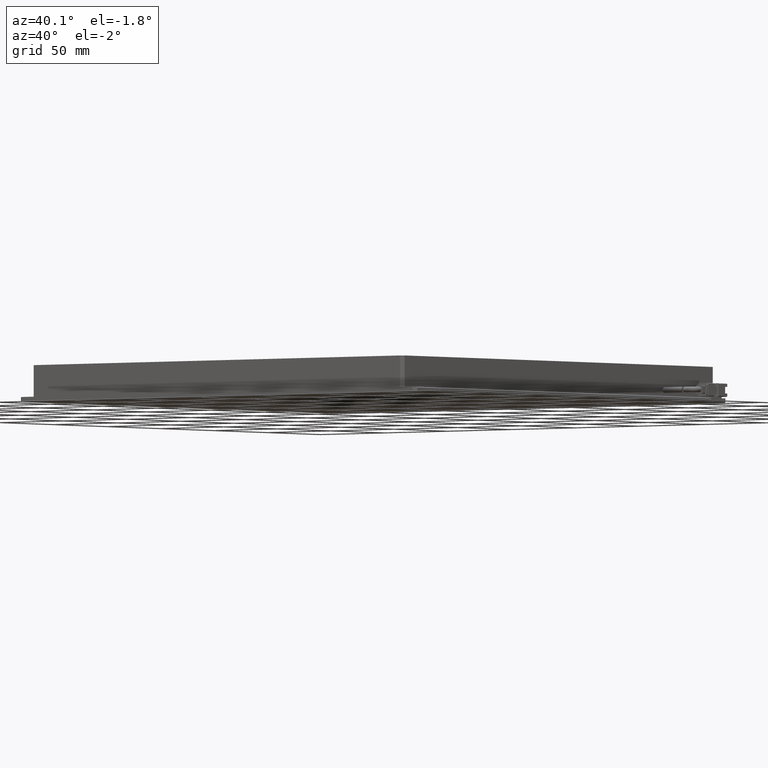
[diagram: clean part render]
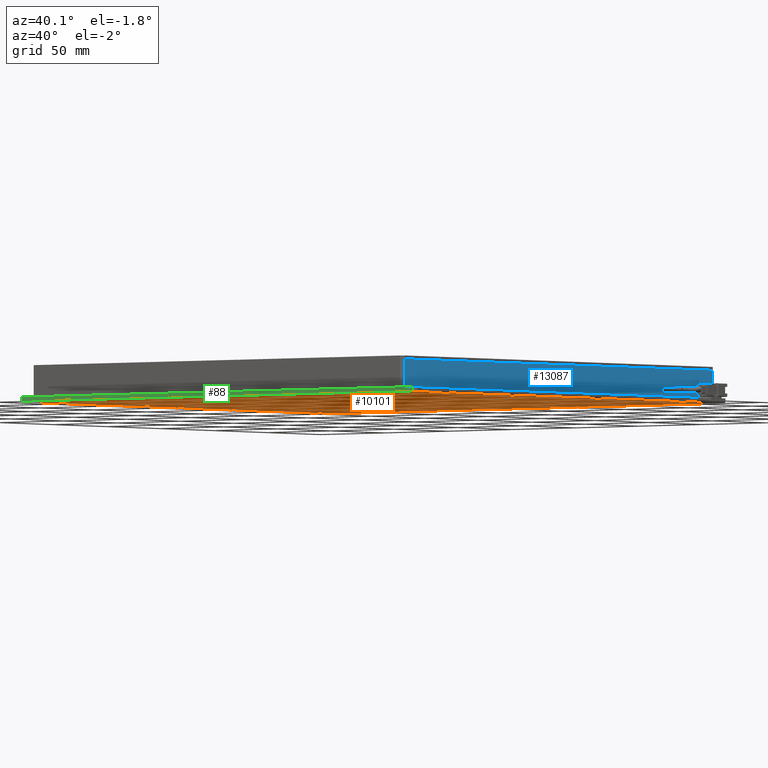
[diagram: same view with three faces highlighted in distinct colors, each labeled with its STEP entity id]
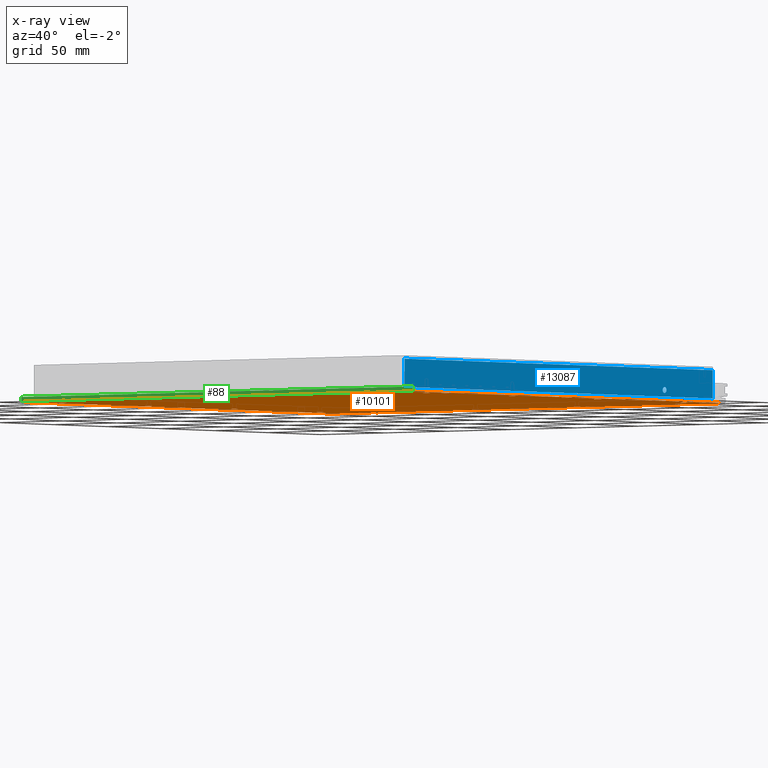
[diagram: x-ray of the same camera — body ghosted, the three highlighted faces saturated]
A machine part, auxiliary view with three faces highlighted in distinct colors.
The next image is the same camera in x-ray (body ghosted, the three faces saturated) — at least one of them is partly hidden behind the body in this view.
Their STEP definitions:

[orange] entity #10101 — the highlighted planar face has unit normal (0, 0, -1).
#23 = CARTESIAN_POINT ( 'NONE',  ( -110.0806771263419100, -106.7301954307733900, -11.50000000014188300 ) ) ;
#45 = EDGE_LOOP ( 'NONE', ( #4154, #4539 ) ) ;
#55 = DIRECTION ( 'NONE',  ( -0.0000000000000000000, -0.0000000000000000000, 1.000000000000000000 ) ) ;
#59 = PLANE ( 'NONE',  #22705 ) ;
#95 = CARTESIAN_POINT ( 'NONE',  ( 181.6693228736581000, 13.26980456922655100, -11.50000000002819600 ) ) ;
#107 = ORIENTED_EDGE ( 'NONE', *, *, #392, .T. ) ;
#170 = DIRECTION ( 'NONE',  ( -1.000000000000000000, 0.0000000000000000000, 0.0000000000000000000 ) ) ;
#172 = DIRECTION ( 'NONE',  ( 1.000000000000000000, 0.0000000000000000000, 0.0000000000000000000 ) ) ;
#263 = CARTESIAN_POINT ( 'NONE',  ( 188.4193228736581000, -130.5230886495869000, -11.50000000002819600 ) ) ;
#268 = EDGE_CURVE ( 'NONE', #20808, #8710, #6907, .T. ) ;
#310 = ORIENTED_EDGE ( 'NONE', *, *, #20920, .T. ) ;
#315 = EDGE_CURVE ( 'NONE', #22592, #26321, #6225, .T. ) ;
#392 = EDGE_CURVE ( 'NONE', #5650, #6043, #15008, .T. ) ;
#421 = EDGE_CURVE ( 'NONE', #7555, #11801, #1614, .T. ) ;
#506 = CIRCLE ( 'NONE', #17453, 2.199999999925692100 ) ;
#524 = CIRCLE ( 'NONE', #22736, 2.199999999810631200 ) ;
#527 = ORIENTED_EDGE ( 'NONE', *, *, #268, .T. ) ;
#541 = FACE_BOUND ( 'NONE', #15930, .T. ) ;
#576 = ORIENTED_EDGE ( 'NONE', *, *, #7539, .T. ) ;
#703 = CARTESIAN_POINT ( 'NONE',  ( -84.88067712644075900, -129.7301954307733600, -11.50000000002819600 ) ) ;
#755 = CIRCLE ( 'NONE', #6941, 2.199999999810631200 ) ;
#769 = EDGE_CURVE ( 'NONE', #15678, #6079, #2224, .T. ) ;
#884 = ORIENTED_EDGE ( 'NONE', *, *, #14242, .T. ) ;
#891 = ORIENTED_EDGE ( 'NONE', *, *, #18793, .T. ) ;
#1038 = DIRECTION ( 'NONE',  ( -1.000000000000000000, 0.0000000000000000000, 0.0000000000000000000 ) ) ;
#1136 = ORIENTED_EDGE ( 'NONE', *, *, #17325, .T. ) ;
#1206 = LINE ( 'NONE', #8019, #17572 ) ;
#1214 = ORIENTED_EDGE ( 'NONE', *, *, #1359, .T. ) ;
#1234 = EDGE_CURVE ( 'NONE', #21354, #7114, #24472, .T. ) ;
#1251 = FACE_BOUND ( 'NONE', #26277, .T. ) ;
#1293 = CIRCLE ( 'NONE', #17501, 2.249999999999988000 ) ;
#1295 = DIRECTION ( 'NONE',  ( -0.0000000000000000000, -0.0000000000000000000, 1.000000000000000000 ) ) ;
#1359 = EDGE_CURVE ( 'NONE', #14040, #20672, #5333, .T. ) ;
#1440 = VECTOR ( 'NONE', #10077, 1000.000000000000000 ) ;
#1514 = DIRECTION ( 'NONE',  ( -0.0000000000000000000, -0.0000000000000000000, 1.000000000000000000 ) ) ;
#1556 = DIRECTION ( 'NONE',  ( -1.000000000000000000, 0.0000000000000000000, 0.0000000000000000000 ) ) ;
#1607 = CARTESIAN_POINT ( 'NONE',  ( -7.080677126341916100, 156.2698045692266400, -11.49999999991450900 ) ) ;
#1611 = DIRECTION ( 'NONE',  ( -0.0000000000000000000, -0.0000000000000000000, 1.000000000000000000 ) ) ;
#1614 = LINE ( 'NONE', #22322, #23011 ) ;
#1615 = CIRCLE ( 'NONE', #4026, 2.199999999901142400 ) ;
#1740 = AXIS2_PLACEMENT_3D ( 'NONE', #9019, #1295, #1556 ) ;
#1769 = CARTESIAN_POINT ( 'NONE',  ( 178.1193228734687200, -106.7301954307733900, -11.49999999997135300 ) ) ;
#1774 = VERTEX_POINT ( 'NONE', #24126 ) ;
#1854 = AXIS2_PLACEMENT_3D ( 'NONE', #15363, #2575, #17516 ) ;
#1874 = DIRECTION ( 'NONE',  ( -0.0000000000000000000, -0.0000000000000000000, 1.000000000000000000 ) ) ;
#1901 = EDGE_CURVE ( 'NONE', #27020, #23419, #17704, .T. ) ;
#1911 = FACE_BOUND ( 'NONE', #23981, .T. ) ;
#2178 = DIRECTION ( 'NONE',  ( -1.000000000000000000, 0.0000000000000000000, 0.0000000000000000000 ) ) ;
#2194 = EDGE_CURVE ( 'NONE', #22463, #21168, #22407, .T. ) ;
#2208 = ORIENTED_EDGE ( 'NONE', *, *, #16748, .T. ) ;
#2224 = CIRCLE ( 'NONE', #6560, 2.199999999810631200 ) ;
#2236 = ORIENTED_EDGE ( 'NONE', *, *, #12126, .T. ) ;
#2269 = AXIS2_PLACEMENT_3D ( 'NONE', #12873, #55, #15041 ) ;
#2289 = EDGE_CURVE ( 'NONE', #26705, #2745, #7242, .T. ) ;
#2330 = CARTESIAN_POINT ( 'NONE',  ( -123.0806771263419100, 159.2698045692266400, -11.50000000002819600 ) ) ;
#2424 = EDGE_CURVE ( 'NONE', #25381, #15782, #1293, .T. ) ;
#2575 = DIRECTION ( 'NONE',  ( -0.0000000000000000000, -0.0000000000000000000, 1.000000000000000000 ) ) ;
#2577 = ORIENTED_EDGE ( 'NONE', *, *, #2424, .T. ) ;
#2591 = FACE_BOUND ( 'NONE', #21570, .T. ) ;
#2628 = CARTESIAN_POINT ( 'NONE',  ( 150.7193228736523700, 156.2698045692266400, -11.50000000002819600 ) ) ;
#2736 = CARTESIAN_POINT ( 'NONE',  ( -118.0806771263419100, 125.2698045692265900, -11.50000000002819600 ) ) ;
#2745 = VERTEX_POINT ( 'NONE', #16505 ) ;
#2758 = ORIENTED_EDGE ( 'NONE', *, *, #7370, .T. ) ;
#2779 = ORIENTED_EDGE ( 'NONE', *, *, #18394, .T. ) ;
#3220 = ORIENTED_EDGE ( 'NONE', *, *, #9382, .T. ) ;
#3252 = CARTESIAN_POINT ( 'NONE',  ( 183.9193228736580700, 13.26980456922655100, -11.50000000002819600 ) ) ;
#3298 = AXIS2_PLACEMENT_3D ( 'NONE', #3644, #18646, #5747 ) ;
#3314 = AXIS2_PLACEMENT_3D ( 'NONE', #18771, #5863, #20897 ) ;
#3333 = AXIS2_PLACEMENT_3D ( 'NONE', #21410, #13000, #22148 ) ;
#3383 = EDGE_CURVE ( 'NONE', #14406, #20335, #5531, .T. ) ;
#3434 = CARTESIAN_POINT ( 'NONE',  ( -120.3306771263419000, -98.73019543077346300, -11.50000000002819600 ) ) ;
#3494 = CIRCLE ( 'NONE', #5571, 2.199999999810631200 ) ;
#3644 = CARTESIAN_POINT ( 'NONE',  ( 72.91932287365810300, -129.7301954307733600, -11.50000000002819600 ) ) ;
#3694 = CARTESIAN_POINT ( 'NONE',  ( -107.8806771264162200, -26.73019543077340300, -11.50000000014188300 ) ) ;
#3748 = DIRECTION ( 'NONE',  ( -0.7071067811865510100, 0.7071067811865441300, 0.0000000000000000000 ) ) ;
#3773 = CARTESIAN_POINT ( 'NONE',  ( -120.8735703451553900, -132.2301954307733600, -11.50000000002819600 ) ) ;
#3790 = ORIENTED_EDGE ( 'NONE', *, *, #27236, .T. ) ;
#3910 = CARTESIAN_POINT ( 'NONE',  ( -107.8806771264162200, 133.2698045692266100, -11.50000000014188300 ) ) ;
#3983 = CARTESIAN_POINT ( 'NONE',  ( 183.9193228736580700, 125.2698045692265400, -11.50000000002819600 ) ) ;
#4026 = AXIS2_PLACEMENT_3D ( 'NONE', #24055, #11170, #26193 ) ;
#4061 = CARTESIAN_POINT ( 'NONE',  ( -89.28067712624304900, 156.2698045692266400, -11.50000000002819600 ) ) ;
#4085 = ORIENTED_EDGE ( 'NONE', *, *, #25024, .T. ) ;
#4125 = ORIENTED_EDGE ( 'NONE', *, *, #315, .T. ) ;
#4154 = ORIENTED_EDGE ( 'NONE', *, *, #11944, .T. ) ;
#4214 = CARTESIAN_POINT ( 'NONE',  ( 173.7193228738474600, -26.73019543077340300, -11.49999999997135300 ) ) ;
#4427 = DIRECTION ( 'NONE',  ( -1.000000000000000000, 0.0000000000000000000, -0.0000000000000000000 ) ) ;
#4539 = ORIENTED_EDGE ( 'NONE', *, *, #13400, .T. ) ;
#4579 = EDGE_CURVE ( 'NONE', #11504, #24335, #8739, .T. ) ;
#4619 = CARTESIAN_POINT ( 'NONE',  ( 178.1193228734687200, 133.2698045692266100, -11.49999999997135300 ) ) ;
#4662 = ORIENTED_EDGE ( 'NONE', *, *, #18635, .T. ) ;
#4789 = ORIENTED_EDGE ( 'NONE', *, *, #21966, .T. ) ;
#4805 = ORIENTED_EDGE ( 'NONE', *, *, #4579, .T. ) ;
#4833 = DIRECTION ( 'NONE',  ( 1.000000000000000000, 0.0000000000000000000, 0.0000000000000000000 ) ) ;
#4852 = ORIENTED_EDGE ( 'NONE', *, *, #26873, .T. ) ;
#4901 = CARTESIAN_POINT ( 'NONE',  ( -123.0806771263419100, -132.2301954307733600, -11.50000000002819600 ) ) ;
#4902 = EDGE_CURVE ( 'NONE', #6079, #15678, #755, .T. ) ;
#5213 = ORIENTED_EDGE ( 'NONE', *, *, #7281, .T. ) ;
#5230 = EDGE_CURVE ( 'NONE', #17469, #26575, #22813, .T. ) ;
#5333 = CIRCLE ( 'NONE', #9254, 2.199999999925692100 ) ;
#5364 = DIRECTION ( 'NONE',  ( 1.000000000000000000, 0.0000000000000000000, 0.0000000000000000000 ) ) ;
#5386 = CARTESIAN_POINT ( 'NONE',  ( 152.9193228736580500, -129.7301954307733600, -11.50000000002819600 ) ) ;
#5432 = VERTEX_POINT ( 'NONE', #15863 ) ;
#5497 = ORIENTED_EDGE ( 'NONE', *, *, #7578, .T. ) ;
#5524 = DIRECTION ( 'NONE',  ( -0.0000000000000000000, -0.0000000000000000000, 1.000000000000000000 ) ) ;
#5531 = LINE ( 'NONE', #3773, #10547 ) ;
#5541 = ORIENTED_EDGE ( 'NONE', *, *, #25412, .T. ) ;
#5557 = CARTESIAN_POINT ( 'NONE',  ( 152.9193228736580500, 156.2698045692266400, -11.50000000002819600 ) ) ;
#5571 = AXIS2_PLACEMENT_3D ( 'NONE', #6301, #21319, #8419 ) ;
#5650 = VERTEX_POINT ( 'NONE', #10267 ) ;
#5704 = CARTESIAN_POINT ( 'NONE',  ( -89.28067712624304900, -129.7301954307733600, -11.50000000002819600 ) ) ;
#5747 = DIRECTION ( 'NONE',  ( -1.000000000000000000, 0.0000000000000000000, 0.0000000000000000000 ) ) ;
#5811 = VERTEX_POINT ( 'NONE', #16491 ) ;
#5848 = ORIENTED_EDGE ( 'NONE', *, *, #1901, .T. ) ;
#5863 = DIRECTION ( 'NONE',  ( -0.0000000000000000000, -0.0000000000000000000, 1.000000000000000000 ) ) ;
#5906 = AXIS2_PLACEMENT_3D ( 'NONE', #3252, #18224, #5364 ) ;
#5982 = CARTESIAN_POINT ( 'NONE',  ( -4.880677126424870900, -129.7301954307733600, -11.49999999991450900 ) ) ;
#6043 = VERTEX_POINT ( 'NONE', #5982 ) ;
#6045 = CARTESIAN_POINT ( 'NONE',  ( -84.88067712644075900, 156.2698045692266400, -11.50000000002819600 ) ) ;
#6060 = VERTEX_POINT ( 'NONE', #5704 ) ;
#6079 = VERTEX_POINT ( 'NONE', #18314 ) ;
#6080 = DIRECTION ( 'NONE',  ( 1.000000000000000000, 0.0000000000000000000, 0.0000000000000000000 ) ) ;
#6163 = FACE_BOUND ( 'NONE', #45, .T. ) ;
#6225 = CIRCLE ( 'NONE', #24538, 2.249999999999988000 ) ;
#6255 = CIRCLE ( 'NONE', #16397, 2.249999999999988000 ) ;
#6282 = ORIENTED_EDGE ( 'NONE', *, *, #26034, .T. ) ;
#6301 = CARTESIAN_POINT ( 'NONE',  ( 175.9193228736580700, -26.73019543077340300, -11.49999999997135300 ) ) ;
#6387 = VERTEX_POINT ( 'NONE', #23809 ) ;
#6560 = AXIS2_PLACEMENT_3D ( 'NONE', #8777, #9139, #26800 ) ;
#6596 = DIRECTION ( 'NONE',  ( -0.0000000000000000000, -0.0000000000000000000, 1.000000000000000000 ) ) ;
#6637 = ORIENTED_EDGE ( 'NONE', *, *, #3383, .T. ) ;
#6738 = ORIENTED_EDGE ( 'NONE', *, *, #10442, .T. ) ;
#6823 = AXIS2_PLACEMENT_3D ( 'NONE', #5386, #20394, #7518 ) ;
#6850 = FACE_BOUND ( 'NONE', #25954, .T. ) ;
#6864 = CARTESIAN_POINT ( 'NONE',  ( -120.3306771263419000, 125.2698045692265900, -11.50000000002819600 ) ) ;
#6907 = CIRCLE ( 'NONE', #17369, 2.199999999925692100 ) ;
#6941 = AXIS2_PLACEMENT_3D ( 'NONE', #20726, #20414, #20232 ) ;
#7000 = CARTESIAN_POINT ( 'NONE',  ( 70.71932287366827600, 156.2698045692266400, -11.50000000002819600 ) ) ;
#7060 = ORIENTED_EDGE ( 'NONE', *, *, #4902, .T. ) ;
#7095 = CARTESIAN_POINT ( 'NONE',  ( 72.91932287365810300, 156.2698045692266400, -11.50000000002819600 ) ) ;
#7114 = VERTEX_POINT ( 'NONE', #2628 ) ;
#7219 = CARTESIAN_POINT ( 'NONE',  ( 70.71932287366827600, -129.7301954307733600, -11.50000000002819600 ) ) ;
#7242 = CIRCLE ( 'NONE', #1740, 2.200000000005697400 ) ;
#7281 = EDGE_CURVE ( 'NONE', #12001, #1774, #13943, .T. ) ;
#7287 = CIRCLE ( 'NONE', #21637, 2.199999999901142400 ) ;
#7370 = EDGE_CURVE ( 'NONE', #8710, #20808, #506, .T. ) ;
#7424 = CIRCLE ( 'NONE', #26347, 2.249999999999974200 ) ;
#7518 = DIRECTION ( 'NONE',  ( -1.000000000000000000, 0.0000000000000000000, 0.0000000000000000000 ) ) ;
#7519 = FACE_BOUND ( 'NONE', #23566, .T. ) ;
#7539 = EDGE_CURVE ( 'NONE', #6387, #8430, #22257, .T. ) ;
#7555 = VERTEX_POINT ( 'NONE', #14667 ) ;
#7578 = EDGE_CURVE ( 'NONE', #24335, #11504, #15234, .T. ) ;
#7636 = DIRECTION ( 'NONE',  ( -0.0000000000000000000, -0.0000000000000000000, 1.000000000000000000 ) ) ;
#7685 = CARTESIAN_POINT ( 'NONE',  ( -118.0806771263419100, -98.73019543077346300, -11.50000000002819600 ) ) ;
#7689 = CARTESIAN_POINT ( 'NONE',  ( 75.11932287364791700, -129.7301954307733600, -11.50000000002819600 ) ) ;
#7698 = ORIENTED_EDGE ( 'NONE', *, *, #13949, .T. ) ;
#7701 = DIRECTION ( 'NONE',  ( -1.000000000000000000, 0.0000000000000000000, 0.0000000000000000000 ) ) ;
#7718 = CARTESIAN_POINT ( 'NONE',  ( 188.4193228736581000, -130.5230886495869000, -11.50000000002819600 ) ) ;
#8019 = CARTESIAN_POINT ( 'NONE',  ( -122.5806771263419300, 159.2698045692266400, -11.50000000002819600 ) ) ;
#8098 = EDGE_CURVE ( 'NONE', #22779, #18355, #13884, .T. ) ;
#8125 = CARTESIAN_POINT ( 'NONE',  ( -110.0806771263419100, 53.26980456922658600, -11.50000000014188300 ) ) ;
#8141 = AXIS2_PLACEMENT_3D ( 'NONE', #21313, #21393, #21488 ) ;
#8173 = FACE_BOUND ( 'NONE', #21202, .T. ) ;
#8209 = CARTESIAN_POINT ( 'NONE',  ( -7.080677126341916100, 156.2698045692266400, -11.49999999991450900 ) ) ;
#8233 = CIRCLE ( 'NONE', #17059, 2.249999999999974200 ) ;
#8247 = ORIENTED_EDGE ( 'NONE', *, *, #2289, .T. ) ;
#8255 = EDGE_CURVE ( 'NONE', #5432, #10481, #18544, .T. ) ;
#8272 = ORIENTED_EDGE ( 'NONE', *, *, #21885, .T. ) ;
#8419 = DIRECTION ( 'NONE',  ( -1.000000000000000000, 0.0000000000000000000, 0.0000000000000000000 ) ) ;
#8430 = VERTEX_POINT ( 'NONE', #24162 ) ;
#8431 = CARTESIAN_POINT ( 'NONE',  ( 183.9193228736580700, 125.2698045692265400, -11.50000000002819600 ) ) ;
#8538 = CARTESIAN_POINT ( 'NONE',  ( -120.8735703451554300, 158.7698045692266400, -11.50000000002819600 ) ) ;
#8602 = CIRCLE ( 'NONE', #16916, 2.200000000005697400 ) ;
#8626 = ORIENTED_EDGE ( 'NONE', *, *, #16566, .T. ) ;
#8704 = ORIENTED_EDGE ( 'NONE', *, *, #769, .T. ) ;
#8710 = VERTEX_POINT ( 'NONE', #3694 ) ;
#8739 = CIRCLE ( 'NONE', #18663, 2.199999999917046100 ) ;
#8777 = CARTESIAN_POINT ( 'NONE',  ( 175.9193228736580700, 53.26980456922658600, -11.49999999997135300 ) ) ;
#8793 = CARTESIAN_POINT ( 'NONE',  ( -87.08067712634191100, 156.2698045692266400, -11.50000000002819600 ) ) ;
#8818 = CARTESIAN_POINT ( 'NONE',  ( 183.9193228736580700, -98.73019543077344900, -11.50000000002819600 ) ) ;
#8832 = DIRECTION ( 'NONE',  ( -0.0000000000000000000, -0.0000000000000000000, 1.000000000000000000 ) ) ;
#8845 = FACE_BOUND ( 'NONE', #14560, .T. ) ;
#9019 = CARTESIAN_POINT ( 'NONE',  ( 152.9193228736580500, -129.7301954307733600, -11.50000000002819600 ) ) ;
#9108 = DIRECTION ( 'NONE',  ( -1.000000000000000000, 0.0000000000000000000, 0.0000000000000000000 ) ) ;
#9139 = DIRECTION ( 'NONE',  ( -0.0000000000000000000, -0.0000000000000000000, 1.000000000000000000 ) ) ;
#9185 = CARTESIAN_POINT ( 'NONE',  ( -110.0806771263419100, 133.2698045692266100, -11.50000000014188300 ) ) ;
#9240 = DIRECTION ( 'NONE',  ( -1.000000000000000000, 0.0000000000000000000, 0.0000000000000000000 ) ) ;
#9254 = AXIS2_PLACEMENT_3D ( 'NONE', #9185, #8832, #9108 ) ;
#9271 = AXIS2_PLACEMENT_3D ( 'NONE', #13879, #15010, #14642 ) ;
#9382 = EDGE_CURVE ( 'NONE', #15782, #25381, #27472, .T. ) ;
#9397 = VERTEX_POINT ( 'NONE', #8538 ) ;
#9480 = VERTEX_POINT ( 'NONE', #6864 ) ;
#9481 = CIRCLE ( 'NONE', #20779, 2.199999999925692100 ) ;
#9595 = VERTEX_POINT ( 'NONE', #15603 ) ;
#9677 = AXIS2_PLACEMENT_3D ( 'NONE', #8209, #23243, #10383 ) ;
#9696 = VERTEX_POINT ( 'NONE', #22545 ) ;
#9826 = DIRECTION ( 'NONE',  ( 1.000000000000000000, 0.0000000000000000000, 0.0000000000000000000 ) ) ;
#9871 = CARTESIAN_POINT ( 'NONE',  ( -112.2806771262676100, 133.2698045692266100, -11.50000000014188300 ) ) ;
#10062 = CARTESIAN_POINT ( 'NONE',  ( 173.7193228738474600, 53.26980456922658600, -11.49999999997135300 ) ) ;
#10077 = DIRECTION ( 'NONE',  ( 1.000000000000000000, -0.0000000000000000000, 0.0000000000000000000 ) ) ;
#10101 = ADVANCED_FACE ( 'NONE', ( #20981, #8845, #25328, #19656, #13976, #8173, #2591, #24671, #18988, #13277, #7519, #1911, #23996, #18305, #12595, #6850, #1251, #23303, #17622, #11910, #6163, #541, #22631 ), #59, .T. ) ;
#10168 = DIRECTION ( 'NONE',  ( 0.0000000000000000000, 1.000000000000000000, 0.0000000000000000000 ) ) ;
#10267 = CARTESIAN_POINT ( 'NONE',  ( -9.280677126258963100, -129.7301954307733600, -11.49999999991450900 ) ) ;
#10285 = EDGE_CURVE ( 'NONE', #26575, #17469, #25301, .T. ) ;
#10297 = DIRECTION ( 'NONE',  ( -1.000000000000000000, 0.0000000000000000000, 0.0000000000000000000 ) ) ;
#10383 = DIRECTION ( 'NONE',  ( -1.000000000000000000, 0.0000000000000000000, 0.0000000000000000000 ) ) ;
#10442 = EDGE_CURVE ( 'NONE', #15446, #6060, #7287, .T. ) ;
#10481 = VERTEX_POINT ( 'NONE', #18675 ) ;
#10547 = VECTOR ( 'NONE', #3748, 999.9999999999998900 ) ;
#10595 = DIRECTION ( 'NONE',  ( -0.0000000000000000000, -0.0000000000000000000, 1.000000000000000000 ) ) ;
#10624 = DIRECTION ( 'NONE',  ( 1.000000000000000000, 0.0000000000000000000, 0.0000000000000000000 ) ) ;
#10655 = CARTESIAN_POINT ( 'NONE',  ( 175.9193228736580700, 133.2698045692266100, -11.49999999997135300 ) ) ;
#10782 = CARTESIAN_POINT ( 'NONE',  ( -118.0806771263419100, -98.73019543077346300, -11.50000000002819600 ) ) ;
#10881 = AXIS2_PLACEMENT_3D ( 'NONE', #11794, #26826, #14006 ) ;
#10914 = CARTESIAN_POINT ( 'NONE',  ( -120.3306771263419000, 13.26980456922663400, -11.50000000002819600 ) ) ;
#10923 = CARTESIAN_POINT ( 'NONE',  ( -4.880677126424870900, 156.2698045692266400, -11.49999999991450900 ) ) ;
#10987 = DIRECTION ( 'NONE',  ( -1.000000000000000000, 0.0000000000000000000, 0.0000000000000000000 ) ) ;
#11011 = DIRECTION ( 'NONE',  ( 1.000000000000000000, 0.0000000000000000000, 0.0000000000000000000 ) ) ;
#11121 = AXIS2_PLACEMENT_3D ( 'NONE', #8125, #23158, #10297 ) ;
#11170 = DIRECTION ( 'NONE',  ( -0.0000000000000000000, -0.0000000000000000000, 1.000000000000000000 ) ) ;
#11247 = AXIS2_PLACEMENT_3D ( 'NONE', #23468, #10595, #25605 ) ;
#11452 = ORIENTED_EDGE ( 'NONE', *, *, #2194, .T. ) ;
#11504 = VERTEX_POINT ( 'NONE', #10923 ) ;
#11586 = DIRECTION ( 'NONE',  ( -1.000000000000000000, 0.0000000000000000000, 0.0000000000000000000 ) ) ;
#11614 = CIRCLE ( 'NONE', #16731, 2.249999999999974200 ) ;
#11668 = CIRCLE ( 'NONE', #10881, 2.199999999925692100 ) ;
#11689 = DIRECTION ( 'NONE',  ( -0.0000000000000000000, -0.0000000000000000000, 1.000000000000000000 ) ) ;
#11784 = CARTESIAN_POINT ( 'NONE',  ( 152.9193228736580500, 156.2698045692266400, -11.50000000002819600 ) ) ;
#11794 = CARTESIAN_POINT ( 'NONE',  ( -110.0806771263419100, -106.7301954307733900, -11.50000000014188300 ) ) ;
#11801 = VERTEX_POINT ( 'NONE', #7718 ) ;
#11910 = FACE_BOUND ( 'NONE', #27330, .T. ) ;
#11923 = LINE ( 'NONE', #13746, #22644 ) ;
#11944 = EDGE_CURVE ( 'NONE', #17068, #24406, #7424, .T. ) ;
#11978 = CARTESIAN_POINT ( 'NONE',  ( 75.11932287364791700, 156.2698045692266400, -11.50000000002819600 ) ) ;
#12001 = VERTEX_POINT ( 'NONE', #95 ) ;
#12019 = CARTESIAN_POINT ( 'NONE',  ( -110.0806771263419100, 133.2698045692266100, -11.50000000014188300 ) ) ;
#12088 = CARTESIAN_POINT ( 'NONE',  ( -87.08067712634191100, -129.7301954307733600, -11.50000000002819600 ) ) ;
#12126 = EDGE_CURVE ( 'NONE', #9480, #14908, #26960, .T. ) ;
#12154 = VERTEX_POINT ( 'NONE', #26191 ) ;
#12229 = CIRCLE ( 'NONE', #2269, 2.199999999810631200 ) ;
#12347 = ORIENTED_EDGE ( 'NONE', *, *, #21557, .T. ) ;
#12473 = LINE ( 'NONE', #263, #23862 ) ;
#12478 = EDGE_CURVE ( 'NONE', #21756, #19791, #17869, .T. ) ;
#12595 = FACE_BOUND ( 'NONE', #25616, .T. ) ;
#12810 = ORIENTED_EDGE ( 'NONE', *, *, #12478, .T. ) ;
#12811 = AXIS2_PLACEMENT_3D ( 'NONE', #20504, #7636, #22653 ) ;
#12821 = ORIENTED_EDGE ( 'NONE', *, *, #10285, .T. ) ;
#12855 = DIRECTION ( 'NONE',  ( -1.000000000000000000, 0.0000000000000000000, 0.0000000000000000000 ) ) ;
#12873 = CARTESIAN_POINT ( 'NONE',  ( 175.9193228736580700, -106.7301954307733900, -11.49999999997135300 ) ) ;
#12995 = AXIS2_PLACEMENT_3D ( 'NONE', #7685, #22712, #9826 ) ;
#13000 = DIRECTION ( 'NONE',  ( -0.0000000000000000000, -0.0000000000000000000, 1.000000000000000000 ) ) ;
#13008 = DIRECTION ( 'NONE',  ( -0.0000000000000000000, -0.0000000000000000000, 1.000000000000000000 ) ) ;
#13012 = DIRECTION ( 'NONE',  ( -0.0000000000000000000, -0.0000000000000000000, 1.000000000000000000 ) ) ;
#13277 = FACE_BOUND ( 'NONE', #23284, .T. ) ;
#13288 = EDGE_LOOP ( 'NONE', ( #23774, #12821 ) ) ;
#13347 = CARTESIAN_POINT ( 'NONE',  ( -115.8306771263419100, 125.2698045692265900, -11.50000000002819600 ) ) ;
#13400 = EDGE_CURVE ( 'NONE', #24406, #17068, #11614, .T. ) ;
#13576 = AXIS2_PLACEMENT_3D ( 'NONE', #7095, #22123, #9240 ) ;
#13746 = CARTESIAN_POINT ( 'NONE',  ( -122.5806771263419400, 157.0626977880401100, -11.50000000002819600 ) ) ;
#13836 = ORIENTED_EDGE ( 'NONE', *, *, #22147, .T. ) ;
#13853 = ORIENTED_EDGE ( 'NONE', *, *, #15827, .T. ) ;
#13879 = CARTESIAN_POINT ( 'NONE',  ( 72.91932287365810300, 156.2698045692266400, -11.50000000002819600 ) ) ;
#13884 = CIRCLE ( 'NONE', #3314, 2.199999999810631200 ) ;
#13929 = CARTESIAN_POINT ( 'NONE',  ( -118.0806771263419100, 13.26980456922663400, -11.50000000002819600 ) ) ;
#13943 = CIRCLE ( 'NONE', #5906, 2.249999999999974200 ) ;
#13949 = EDGE_CURVE ( 'NONE', #23394, #5811, #524, .T. ) ;
#13976 = FACE_BOUND ( 'NONE', #20656, .T. ) ;
#14006 = DIRECTION ( 'NONE',  ( -1.000000000000000000, 0.0000000000000000000, 0.0000000000000000000 ) ) ;
#14040 = VERTEX_POINT ( 'NONE', #3910 ) ;
#14197 = DIRECTION ( 'NONE',  ( -1.000000000000000000, 0.0000000000000000000, 0.0000000000000000000 ) ) ;
#14242 = EDGE_CURVE ( 'NONE', #8430, #6387, #9481, .T. ) ;
#14270 = DIRECTION ( 'NONE',  ( -1.000000000000000000, 0.0000000000000000000, 0.0000000000000000000 ) ) ;
#14406 = VERTEX_POINT ( 'NONE', #22165 ) ;
#14433 = CARTESIAN_POINT ( 'NONE',  ( 175.9193228736580700, -26.73019543077340300, -11.49999999997135300 ) ) ;
#14560 = EDGE_LOOP ( 'NONE', ( #8626, #24454 ) ) ;
#14642 = DIRECTION ( 'NONE',  ( -1.000000000000000000, 0.0000000000000000000, 0.0000000000000000000 ) ) ;
#14667 = CARTESIAN_POINT ( 'NONE',  ( 188.4193228736581000, 157.0626977880402800, -11.50000000002819100 ) ) ;
#14699 = CARTESIAN_POINT ( 'NONE',  ( -118.0806771263419100, 125.2698045692265900, -11.50000000002819600 ) ) ;
#14734 = VERTEX_POINT ( 'NONE', #4061 ) ;
#14776 = CARTESIAN_POINT ( 'NONE',  ( 155.1193228736637500, 156.2698045692266400, -11.50000000002819600 ) ) ;
#14908 = VERTEX_POINT ( 'NONE', #13347 ) ;
#14998 = DIRECTION ( 'NONE',  ( -0.0000000000000000000, -0.0000000000000000000, 1.000000000000000000 ) ) ;
#15008 = CIRCLE ( 'NONE', #8141, 2.199999999917046100 ) ;
#15010 = DIRECTION ( 'NONE',  ( -0.0000000000000000000, -0.0000000000000000000, 1.000000000000000000 ) ) ;
#15041 = DIRECTION ( 'NONE',  ( -1.000000000000000000, 0.0000000000000000000, 0.0000000000000000000 ) ) ;
#15119 = EDGE_CURVE ( 'NONE', #9397, #9696, #23509, .T. ) ;
#15234 = CIRCLE ( 'NONE', #9677, 2.199999999917046100 ) ;
#15237 = DIRECTION ( 'NONE',  ( -0.7071067811865130400, -0.7071067811865819900, 0.0000000000000000000 ) ) ;
#15298 = EDGE_LOOP ( 'NONE', ( #12347, #6282, #17742, #8272, #20408, #26805, #4662, #6637 ) ) ;
#15363 = CARTESIAN_POINT ( 'NONE',  ( -87.08067712634191100, -129.7301954307733600, -11.50000000002819600 ) ) ;
#15446 = VERTEX_POINT ( 'NONE', #703 ) ;
#15603 = CARTESIAN_POINT ( 'NONE',  ( -122.5806771263419400, 157.0626977880401100, -11.50000000002820000 ) ) ;
#15678 = VERTEX_POINT ( 'NONE', #10062 ) ;
#15684 = CARTESIAN_POINT ( 'NONE',  ( 186.1693228736580700, 125.2698045692265400, -11.50000000002819600 ) ) ;
#15764 = CARTESIAN_POINT ( 'NONE',  ( 181.6693228736581000, 125.2698045692265400, -11.50000000002819600 ) ) ;
#15782 = VERTEX_POINT ( 'NONE', #10914 ) ;
#15827 = EDGE_CURVE ( 'NONE', #6060, #15446, #23113, .T. ) ;
#15863 = CARTESIAN_POINT ( 'NONE',  ( -107.8806771264162200, -106.7301954307733900, -11.50000000014188300 ) ) ;
#15930 = EDGE_LOOP ( 'NONE', ( #4852, #5213 ) ) ;
#16107 = DIRECTION ( 'NONE',  ( 0.7071067811865244800, -0.7071067811865704400, 0.0000000000000000000 ) ) ;
#16222 = DIRECTION ( 'NONE',  ( -0.0000000000000000000, -0.0000000000000000000, 1.000000000000000000 ) ) ;
#16397 = AXIS2_PLACEMENT_3D ( 'NONE', #14699, #1874, #16840 ) ;
#16491 = CARTESIAN_POINT ( 'NONE',  ( 178.1193228734687200, -26.73019543077340300, -11.49999999997135300 ) ) ;
#16505 = CARTESIAN_POINT ( 'NONE',  ( 150.7193228736523700, -129.7301954307733600, -11.50000000002819600 ) ) ;
#16535 = EDGE_CURVE ( 'NONE', #2745, #26705, #27806, .T. ) ;
#16556 = DIRECTION ( 'NONE',  ( -1.000000000000000000, 0.0000000000000000000, 0.0000000000000000000 ) ) ;
#16566 = EDGE_CURVE ( 'NONE', #7114, #21354, #8602, .T. ) ;
#16731 = AXIS2_PLACEMENT_3D ( 'NONE', #3983, #18998, #6080 ) ;
#16748 = EDGE_CURVE ( 'NONE', #14908, #9480, #6255, .T. ) ;
#16766 = CARTESIAN_POINT ( 'NONE',  ( 155.1193228736637500, -129.7301954307733600, -11.50000000002819600 ) ) ;
#16840 = DIRECTION ( 'NONE',  ( 1.000000000000000000, 0.0000000000000000000, 0.0000000000000000000 ) ) ;
#16903 = EDGE_CURVE ( 'NONE', #14734, #23359, #20353, .T. ) ;
#16916 = AXIS2_PLACEMENT_3D ( 'NONE', #5557, #20572, #7701 ) ;
#16926 = VECTOR ( 'NONE', #16107, 1000.000000000000100 ) ;
#17059 = AXIS2_PLACEMENT_3D ( 'NONE', #8818, #23870, #11011 ) ;
#17068 = VERTEX_POINT ( 'NONE', #15684 ) ;
#17262 = DIRECTION ( 'NONE',  ( 0.0000000000000000000, 0.0000000000000000000, -1.000000000000000000 ) ) ;
#17325 = EDGE_CURVE ( 'NONE', #18355, #22779, #12229, .T. ) ;
#17369 = AXIS2_PLACEMENT_3D ( 'NONE', #20112, #19889, #19730 ) ;
#17453 = AXIS2_PLACEMENT_3D ( 'NONE', #18427, #5524, #20539 ) ;
#17469 = VERTEX_POINT ( 'NONE', #7000 ) ;
#17501 = AXIS2_PLACEMENT_3D ( 'NONE', #13929, #17641, #17611 ) ;
#17516 = DIRECTION ( 'NONE',  ( -1.000000000000000000, 0.0000000000000000000, 0.0000000000000000000 ) ) ;
#17557 = CARTESIAN_POINT ( 'NONE',  ( -9.280677126258963100, 156.2698045692266400, -11.49999999991450900 ) ) ;
#17572 = VECTOR ( 'NONE', #10168, 1000.000000000000000 ) ;
#17576 = AXIS2_PLACEMENT_3D ( 'NONE', #10655, #25659, #12855 ) ;
#17611 = DIRECTION ( 'NONE',  ( 1.000000000000000000, 0.0000000000000000000, 0.0000000000000000000 ) ) ;
#17622 = FACE_BOUND ( 'NONE', #20264, .T. ) ;
#17641 = DIRECTION ( 'NONE',  ( -0.0000000000000000000, -0.0000000000000000000, 1.000000000000000000 ) ) ;
#17693 = DIRECTION ( 'NONE',  ( -0.0000000000000000000, -0.0000000000000000000, 1.000000000000000000 ) ) ;
#17704 = CIRCLE ( 'NONE', #3333, 2.249999999999974200 ) ;
#17742 = ORIENTED_EDGE ( 'NONE', *, *, #15119, .T. ) ;
#17827 = VECTOR ( 'NONE', #22146, 1000.000000000000000 ) ;
#17869 = CIRCLE ( 'NONE', #17576, 2.199999999810631200 ) ;
#18212 = CARTESIAN_POINT ( 'NONE',  ( 72.91932287365810300, -129.7301954307733600, -11.50000000002819600 ) ) ;
#18224 = DIRECTION ( 'NONE',  ( -0.0000000000000000000, -0.0000000000000000000, 1.000000000000000000 ) ) ;
#18305 = FACE_BOUND ( 'NONE', #25365, .T. ) ;
#18314 = CARTESIAN_POINT ( 'NONE',  ( 178.1193228734687200, 53.26980456922658600, -11.49999999997135300 ) ) ;
#18355 = VERTEX_POINT ( 'NONE', #21216 ) ;
#18367 = AXIS2_PLACEMENT_3D ( 'NONE', #25815, #13012, #172 ) ;
#18394 = EDGE_CURVE ( 'NONE', #19791, #21756, #18529, .T. ) ;
#18404 = DIRECTION ( 'NONE',  ( -0.0000000000000000000, -0.0000000000000000000, 1.000000000000000000 ) ) ;
#18427 = CARTESIAN_POINT ( 'NONE',  ( -110.0806771263419100, -26.73019543077340300, -11.50000000014188300 ) ) ;
#18481 = EDGE_CURVE ( 'NONE', #11801, #12154, #12473, .T. ) ;
#18529 = CIRCLE ( 'NONE', #11247, 2.199999999810631200 ) ;
#18544 = CIRCLE ( 'NONE', #21936, 2.199999999925692100 ) ;
#18635 = EDGE_CURVE ( 'NONE', #12154, #14406, #23504, .T. ) ;
#18646 = DIRECTION ( 'NONE',  ( -0.0000000000000000000, -0.0000000000000000000, 1.000000000000000000 ) ) ;
#18663 = AXIS2_PLACEMENT_3D ( 'NONE', #1607, #1514, #1038 ) ;
#18675 = CARTESIAN_POINT ( 'NONE',  ( -112.2806771262676100, -106.7301954307733900, -11.50000000014188300 ) ) ;
#18684 = DIRECTION ( 'NONE',  ( -1.000000000000000000, 0.0000000000000000000, 0.0000000000000000000 ) ) ;
#18757 = AXIS2_PLACEMENT_3D ( 'NONE', #8793, #23850, #10987 ) ;
#18771 = CARTESIAN_POINT ( 'NONE',  ( 175.9193228736580700, -106.7301954307733900, -11.49999999997135300 ) ) ;
#18793 = EDGE_CURVE ( 'NONE', #20672, #14040, #26170, .T. ) ;
#18988 = FACE_BOUND ( 'NONE', #22598, .T. ) ;
#18998 = DIRECTION ( 'NONE',  ( -0.0000000000000000000, -0.0000000000000000000, 1.000000000000000000 ) ) ;
#19184 = CIRCLE ( 'NONE', #12995, 2.249999999999988000 ) ;
#19258 = EDGE_LOOP ( 'NONE', ( #5541, #5848 ) ) ;
#19497 = CARTESIAN_POINT ( 'NONE',  ( -118.0806771263419100, 13.26980456922663400, -11.50000000002819600 ) ) ;
#19656 = FACE_BOUND ( 'NONE', #19939, .T. ) ;
#19730 = DIRECTION ( 'NONE',  ( -1.000000000000000000, 0.0000000000000000000, 0.0000000000000000000 ) ) ;
#19791 = VERTEX_POINT ( 'NONE', #4619 ) ;
#19889 = DIRECTION ( 'NONE',  ( -0.0000000000000000000, -0.0000000000000000000, 1.000000000000000000 ) ) ;
#19939 = EDGE_LOOP ( 'NONE', ( #5497, #4805 ) ) ;
#20112 = CARTESIAN_POINT ( 'NONE',  ( -110.0806771263419100, -26.73019543077340300, -11.50000000014188300 ) ) ;
#20232 = DIRECTION ( 'NONE',  ( -1.000000000000000000, 0.0000000000000000000, 0.0000000000000000000 ) ) ;
#20264 = EDGE_LOOP ( 'NONE', ( #2577, #3220 ) ) ;
#20335 = VERTEX_POINT ( 'NONE', #26312 ) ;
#20353 = CIRCLE ( 'NONE', #18757, 2.199999999901142400 ) ;
#20394 = DIRECTION ( 'NONE',  ( -0.0000000000000000000, -0.0000000000000000000, 1.000000000000000000 ) ) ;
#20408 = ORIENTED_EDGE ( 'NONE', *, *, #421, .T. ) ;
#20414 = DIRECTION ( 'NONE',  ( -0.0000000000000000000, -0.0000000000000000000, 1.000000000000000000 ) ) ;
#20504 = CARTESIAN_POINT ( 'NONE',  ( -7.080677126341916100, -129.7301954307733600, -11.49999999991450900 ) ) ;
#20536 = EDGE_CURVE ( 'NONE', #6043, #5650, #22421, .T. ) ;
#20539 = DIRECTION ( 'NONE',  ( -1.000000000000000000, 0.0000000000000000000, 0.0000000000000000000 ) ) ;
#20572 = DIRECTION ( 'NONE',  ( -0.0000000000000000000, -0.0000000000000000000, 1.000000000000000000 ) ) ;
#20656 = EDGE_LOOP ( 'NONE', ( #26074, #310 ) ) ;
#20672 = VERTEX_POINT ( 'NONE', #9871 ) ;
#20726 = CARTESIAN_POINT ( 'NONE',  ( 175.9193228736580700, 53.26980456922658600, -11.49999999997135300 ) ) ;
#20779 = AXIS2_PLACEMENT_3D ( 'NONE', #25814, #13008, #170 ) ;
#20808 = VERTEX_POINT ( 'NONE', #25632 ) ;
#20870 = ORIENTED_EDGE ( 'NONE', *, *, #20536, .T. ) ;
#20897 = DIRECTION ( 'NONE',  ( -1.000000000000000000, 0.0000000000000000000, 0.0000000000000000000 ) ) ;
#20920 = EDGE_CURVE ( 'NONE', #23359, #14734, #1615, .T. ) ;
#20981 = FACE_OUTER_BOUND ( 'NONE', #15298, .T. ) ;
#21168 = VERTEX_POINT ( 'NONE', #7689 ) ;
#21202 = EDGE_LOOP ( 'NONE', ( #25410, #8247 ) ) ;
#21216 = CARTESIAN_POINT ( 'NONE',  ( 173.7193228738474600, -106.7301954307733900, -11.49999999997135300 ) ) ;
#21313 = CARTESIAN_POINT ( 'NONE',  ( -7.080677126341916100, -129.7301954307733600, -11.49999999991450900 ) ) ;
#21319 = DIRECTION ( 'NONE',  ( -0.0000000000000000000, -0.0000000000000000000, 1.000000000000000000 ) ) ;
#21354 = VERTEX_POINT ( 'NONE', #14776 ) ;
#21393 = DIRECTION ( 'NONE',  ( -0.0000000000000000000, -0.0000000000000000000, 1.000000000000000000 ) ) ;
#21410 = CARTESIAN_POINT ( 'NONE',  ( 183.9193228736580700, -98.73019543077344900, -11.50000000002819600 ) ) ;
#21439 = AXIS2_PLACEMENT_3D ( 'NONE', #18212, #18404, #18684 ) ;
#21488 = DIRECTION ( 'NONE',  ( -1.000000000000000000, 0.0000000000000000000, 0.0000000000000000000 ) ) ;
#21557 = EDGE_CURVE ( 'NONE', #20335, #9595, #1206, .T. ) ;
#21570 = EDGE_LOOP ( 'NONE', ( #11452, #4789 ) ) ;
#21615 = DIRECTION ( 'NONE',  ( 1.000000000000000000, 0.0000000000000000000, 0.0000000000000000000 ) ) ;
#21637 = AXIS2_PLACEMENT_3D ( 'NONE', #12088, #27098, #14270 ) ;
#21756 = VERTEX_POINT ( 'NONE', #21899 ) ;
#21885 = EDGE_CURVE ( 'NONE', #9696, #7555, #21937, .T. ) ;
#21899 = CARTESIAN_POINT ( 'NONE',  ( 173.7193228738474600, 133.2698045692266100, -11.49999999997135300 ) ) ;
#21936 = AXIS2_PLACEMENT_3D ( 'NONE', #23, #14998, #2178 ) ;
#21937 = LINE ( 'NONE', #26802, #16926 ) ;
#21938 = EDGE_LOOP ( 'NONE', ( #107, #20870 ) ) ;
#21966 = EDGE_CURVE ( 'NONE', #21168, #22463, #27329, .T. ) ;
#22123 = DIRECTION ( 'NONE',  ( -0.0000000000000000000, -0.0000000000000000000, 1.000000000000000000 ) ) ;
#22146 = DIRECTION ( 'NONE',  ( -1.000000000000000000, 0.0000000000000000000, -0.0000000000000000000 ) ) ;
#22147 = EDGE_CURVE ( 'NONE', #5811, #23394, #3494, .T. ) ;
#22148 = DIRECTION ( 'NONE',  ( 1.000000000000000000, 0.0000000000000000000, 0.0000000000000000000 ) ) ;
#22165 = CARTESIAN_POINT ( 'NONE',  ( -120.8735703451553900, -132.2301954307733900, -11.50000000002818900 ) ) ;
#22257 = CIRCLE ( 'NONE', #11121, 2.199999999925692100 ) ;
#22322 = CARTESIAN_POINT ( 'NONE',  ( 188.4193228736581000, 159.2698045692266400, -11.50000000002819600 ) ) ;
#22384 = DIRECTION ( 'NONE',  ( -0.0000000000000000000, -1.000000000000000000, -0.0000000000000000000 ) ) ;
#22407 = CIRCLE ( 'NONE', #21439, 2.199999999989821200 ) ;
#22421 = CIRCLE ( 'NONE', #12811, 2.199999999917046100 ) ;
#22463 = VERTEX_POINT ( 'NONE', #7219 ) ;
#22545 = CARTESIAN_POINT ( 'NONE',  ( 186.7122160924719500, 158.7698045692266400, -11.50000000002817800 ) ) ;
#22592 = VERTEX_POINT ( 'NONE', #3434 ) ;
#22598 = EDGE_LOOP ( 'NONE', ( #13853, #6738 ) ) ;
#22631 = FACE_BOUND ( 'NONE', #19258, .T. ) ;
#22644 = VECTOR ( 'NONE', #24308, 1000.000000000000000 ) ;
#22653 = DIRECTION ( 'NONE',  ( -1.000000000000000000, 0.0000000000000000000, 0.0000000000000000000 ) ) ;
#22705 = AXIS2_PLACEMENT_3D ( 'NONE', #2330, #17262, #4427 ) ;
#22712 = DIRECTION ( 'NONE',  ( -0.0000000000000000000, -0.0000000000000000000, 1.000000000000000000 ) ) ;
#22736 = AXIS2_PLACEMENT_3D ( 'NONE', #14433, #1611, #16556 ) ;
#22779 = VERTEX_POINT ( 'NONE', #1769 ) ;
#22813 = CIRCLE ( 'NONE', #9271, 2.199999999989821200 ) ;
#23011 = VECTOR ( 'NONE', #22384, 1000.000000000000000 ) ;
#23113 = CIRCLE ( 'NONE', #1854, 2.199999999901142400 ) ;
#23158 = DIRECTION ( 'NONE',  ( -0.0000000000000000000, -0.0000000000000000000, 1.000000000000000000 ) ) ;
#23243 = DIRECTION ( 'NONE',  ( -0.0000000000000000000, -0.0000000000000000000, 1.000000000000000000 ) ) ;
#23284 = EDGE_LOOP ( 'NONE', ( #1136, #26528 ) ) ;
#23303 = FACE_BOUND ( 'NONE', #26590, .T. ) ;
#23359 = VERTEX_POINT ( 'NONE', #6045 ) ;
#23377 = DIRECTION ( 'NONE',  ( 1.000000000000000000, 0.0000000000000000000, 0.0000000000000000000 ) ) ;
#23394 = VERTEX_POINT ( 'NONE', #4214 ) ;
#23419 = VERTEX_POINT ( 'NONE', #23502 ) ;
#23468 = CARTESIAN_POINT ( 'NONE',  ( 175.9193228736580700, 133.2698045692266100, -11.49999999997135300 ) ) ;
#23489 = DIRECTION ( 'NONE',  ( -0.0000000000000000000, -0.0000000000000000000, 1.000000000000000000 ) ) ;
#23502 = CARTESIAN_POINT ( 'NONE',  ( 186.1693228736580700, -98.73019543077344900, -11.50000000002819600 ) ) ;
#23504 = LINE ( 'NONE', #4901, #17827 ) ;
#23509 = LINE ( 'NONE', #24559, #1440 ) ;
#23566 = EDGE_LOOP ( 'NONE', ( #7698, #13836 ) ) ;
#23774 = ORIENTED_EDGE ( 'NONE', *, *, #5230, .T. ) ;
#23809 = CARTESIAN_POINT ( 'NONE',  ( -112.2806771262676100, 53.26980456922658600, -11.50000000014188300 ) ) ;
#23850 = DIRECTION ( 'NONE',  ( -0.0000000000000000000, -0.0000000000000000000, 1.000000000000000000 ) ) ;
#23862 = VECTOR ( 'NONE', #15237, 1000.000000000000000 ) ;
#23870 = DIRECTION ( 'NONE',  ( -0.0000000000000000000, -0.0000000000000000000, 1.000000000000000000 ) ) ;
#23895 = CIRCLE ( 'NONE', #18367, 2.249999999999974200 ) ;
#23981 = EDGE_LOOP ( 'NONE', ( #8704, #7060 ) ) ;
#23996 = FACE_BOUND ( 'NONE', #24934, .T. ) ;
#24046 = CARTESIAN_POINT ( 'NONE',  ( 181.6693228736581000, -98.73019543077344900, -11.50000000002819600 ) ) ;
#24055 = CARTESIAN_POINT ( 'NONE',  ( -87.08067712634191100, 156.2698045692266400, -11.50000000002819600 ) ) ;
#24126 = CARTESIAN_POINT ( 'NONE',  ( 186.1693228736580700, 13.26980456922655100, -11.50000000002819600 ) ) ;
#24162 = CARTESIAN_POINT ( 'NONE',  ( -107.8806771264162200, 53.26980456922658600, -11.50000000014188300 ) ) ;
#24308 = DIRECTION ( 'NONE',  ( 0.7071067811865428000, 0.7071067811865522400, 0.0000000000000000000 ) ) ;
#24335 = VERTEX_POINT ( 'NONE', #17557 ) ;
#24406 = VERTEX_POINT ( 'NONE', #15764 ) ;
#24454 = ORIENTED_EDGE ( 'NONE', *, *, #1234, .T. ) ;
#24472 = CIRCLE ( 'NONE', #25621, 2.200000000005697400 ) ;
#24538 = AXIS2_PLACEMENT_3D ( 'NONE', #10782, #16222, #23377 ) ;
#24559 = CARTESIAN_POINT ( 'NONE',  ( -123.0806771263419100, 158.7698045692266400, -11.50000000002819600 ) ) ;
#24586 = AXIS2_PLACEMENT_3D ( 'NONE', #12019, #27024, #14197 ) ;
#24671 = FACE_BOUND ( 'NONE', #21938, .T. ) ;
#24867 = AXIS2_PLACEMENT_3D ( 'NONE', #19497, #6596, #21615 ) ;
#24934 = EDGE_LOOP ( 'NONE', ( #12810, #2779 ) ) ;
#25024 = EDGE_CURVE ( 'NONE', #10481, #5432, #11668, .T. ) ;
#25301 = CIRCLE ( 'NONE', #13576, 2.199999999989821200 ) ;
#25328 = FACE_BOUND ( 'NONE', #13288, .T. ) ;
#25365 = EDGE_LOOP ( 'NONE', ( #4085, #27564 ) ) ;
#25381 = VERTEX_POINT ( 'NONE', #25831 ) ;
#25410 = ORIENTED_EDGE ( 'NONE', *, *, #16535, .T. ) ;
#25412 = EDGE_CURVE ( 'NONE', #23419, #27020, #8233, .T. ) ;
#25605 = DIRECTION ( 'NONE',  ( -1.000000000000000000, 0.0000000000000000000, 0.0000000000000000000 ) ) ;
#25616 = EDGE_LOOP ( 'NONE', ( #527, #2758 ) ) ;
#25621 = AXIS2_PLACEMENT_3D ( 'NONE', #11784, #11689, #11586 ) ;
#25632 = CARTESIAN_POINT ( 'NONE',  ( -112.2806771262676100, -26.73019543077340300, -11.50000000014188300 ) ) ;
#25659 = DIRECTION ( 'NONE',  ( -0.0000000000000000000, -0.0000000000000000000, 1.000000000000000000 ) ) ;
#25763 = CARTESIAN_POINT ( 'NONE',  ( -115.8306771263419100, -98.73019543077346300, -11.50000000002819600 ) ) ;
#25813 = AXIS2_PLACEMENT_3D ( 'NONE', #2736, #17693, #4833 ) ;
#25814 = CARTESIAN_POINT ( 'NONE',  ( -110.0806771263419100, 53.26980456922658600, -11.50000000014188300 ) ) ;
#25815 = CARTESIAN_POINT ( 'NONE',  ( 183.9193228736580700, 13.26980456922655100, -11.50000000002819600 ) ) ;
#25831 = CARTESIAN_POINT ( 'NONE',  ( -115.8306771263419100, 13.26980456922663400, -11.50000000002819600 ) ) ;
#25954 = EDGE_LOOP ( 'NONE', ( #576, #884 ) ) ;
#26034 = EDGE_CURVE ( 'NONE', #9595, #9397, #11923, .T. ) ;
#26074 = ORIENTED_EDGE ( 'NONE', *, *, #16903, .T. ) ;
#26170 = CIRCLE ( 'NONE', #24586, 2.199999999925692100 ) ;
#26191 = CARTESIAN_POINT ( 'NONE',  ( 186.7122160924718100, -132.2301954307733600, -11.50000000002816200 ) ) ;
#26193 = DIRECTION ( 'NONE',  ( -1.000000000000000000, 0.0000000000000000000, 0.0000000000000000000 ) ) ;
#26277 = EDGE_LOOP ( 'NONE', ( #891, #1214 ) ) ;
#26312 = CARTESIAN_POINT ( 'NONE',  ( -122.5806771263419100, -130.5230886495868700, -11.50000000002818200 ) ) ;
#26321 = VERTEX_POINT ( 'NONE', #25763 ) ;
#26347 = AXIS2_PLACEMENT_3D ( 'NONE', #8431, #23489, #10624 ) ;
#26528 = ORIENTED_EDGE ( 'NONE', *, *, #8098, .T. ) ;
#26575 = VERTEX_POINT ( 'NONE', #11978 ) ;
#26590 = EDGE_LOOP ( 'NONE', ( #2208, #2236 ) ) ;
#26705 = VERTEX_POINT ( 'NONE', #16766 ) ;
#26800 = DIRECTION ( 'NONE',  ( -1.000000000000000000, 0.0000000000000000000, 0.0000000000000000000 ) ) ;
#26802 = CARTESIAN_POINT ( 'NONE',  ( 186.7122160924718600, 158.7698045692266400, -11.50000000002819600 ) ) ;
#26805 = ORIENTED_EDGE ( 'NONE', *, *, #18481, .T. ) ;
#26826 = DIRECTION ( 'NONE',  ( -0.0000000000000000000, -0.0000000000000000000, 1.000000000000000000 ) ) ;
#26873 = EDGE_CURVE ( 'NONE', #1774, #12001, #23895, .T. ) ;
#26960 = CIRCLE ( 'NONE', #25813, 2.249999999999988000 ) ;
#27020 = VERTEX_POINT ( 'NONE', #24046 ) ;
#27024 = DIRECTION ( 'NONE',  ( -0.0000000000000000000, -0.0000000000000000000, 1.000000000000000000 ) ) ;
#27098 = DIRECTION ( 'NONE',  ( -0.0000000000000000000, -0.0000000000000000000, 1.000000000000000000 ) ) ;
#27236 = EDGE_CURVE ( 'NONE', #26321, #22592, #19184, .T. ) ;
#27329 = CIRCLE ( 'NONE', #3298, 2.199999999989821200 ) ;
#27330 = EDGE_LOOP ( 'NONE', ( #3790, #4125 ) ) ;
#27472 = CIRCLE ( 'NONE', #24867, 2.249999999999988000 ) ;
#27564 = ORIENTED_EDGE ( 'NONE', *, *, #8255, .T. ) ;
#27806 = CIRCLE ( 'NONE', #6823, 2.200000000005697400 ) ;

[blue] entity #13087 — the highlighted planar face has unit normal (-1, 0, 0).
#533 = CARTESIAN_POINT ( 'NONE',  ( 178.9193228736581900, 112.2698045692266600, -4.500000000028197000 ) ) ;
#770 = AXIS2_PLACEMENT_3D ( 'NONE', #533, #15502, #2722 ) ;
#813 = VERTEX_POINT ( 'NONE', #23835 ) ;
#1593 = ORIENTED_EDGE ( 'NONE', *, *, #7160, .F. ) ;
#2722 = DIRECTION ( 'NONE',  ( 0.0000000000000000000, 0.0000000000000000000, 1.000000000000000000 ) ) ;
#3054 = CARTESIAN_POINT ( 'NONE',  ( 178.9193228736581900, 112.2698045692266600, -2.750000000028195200 ) ) ;
#3420 = CARTESIAN_POINT ( 'NONE',  ( 178.9193228736582500, 157.2698045692267200, 8.499999999971805700 ) ) ;
#3703 = DIRECTION ( 'NONE',  ( 0.0000000000000000000, 0.0000000000000000000, 1.000000000000000000 ) ) ;
#4077 = CIRCLE ( 'NONE', #15092, 1.750000000000001600 ) ;
#5835 = VERTEX_POINT ( 'NONE', #3420 ) ;
#6389 = CARTESIAN_POINT ( 'NONE',  ( 178.9193228736581900, 159.2698045692267500, 8.499999999971805700 ) ) ;
#6804 = DIRECTION ( 'NONE',  ( -0.0000000000000000000, -1.000000000000000000, 0.0000000000000000000 ) ) ;
#7160 = EDGE_CURVE ( 'NONE', #23169, #23072, #16652, .T. ) ;
#7428 = LINE ( 'NONE', #20381, #12514 ) ;
#7488 = EDGE_CURVE ( 'NONE', #18749, #5835, #19265, .T. ) ;
#7498 = DIRECTION ( 'NONE',  ( -0.0000000000000000000, 1.000000000000000000, 0.0000000000000000000 ) ) ;
#8410 = VERTEX_POINT ( 'NONE', #24064 ) ;
#8528 = DIRECTION ( 'NONE',  ( 0.0000000000000000000, 0.0000000000000000000, 1.000000000000000000 ) ) ;
#8863 = DIRECTION ( 'NONE',  ( 0.0000000000000000000, 0.0000000000000000000, 1.000000000000000000 ) ) ;
#8976 = CARTESIAN_POINT ( 'NONE',  ( 178.9193228736581900, 112.2698045692266600, -4.500000000028197000 ) ) ;
#9505 = ORIENTED_EDGE ( 'NONE', *, *, #20257, .F. ) ;
#9544 = CARTESIAN_POINT ( 'NONE',  ( 178.9193228736582500, 157.2698045692267200, -8.500000000028194300 ) ) ;
#9692 = FACE_BOUND ( 'NONE', #20235, .T. ) ;
#11144 = DIRECTION ( 'NONE',  ( 0.0000000000000000000, 0.0000000000000000000, 1.000000000000000000 ) ) ;
#12205 = CARTESIAN_POINT ( 'NONE',  ( 178.9193228736581900, 157.2698045692267200, 8.499999999971805700 ) ) ;
#12311 = EDGE_CURVE ( 'NONE', #8410, #5835, #7428, .T. ) ;
#12422 = LINE ( 'NONE', #26063, #17458 ) ;
#12514 = VECTOR ( 'NONE', #7498, 1000.000000000000000 ) ;
#13087 = ADVANCED_FACE ( 'NONE', ( #9692, #15447 ), #19202, .F. ) ;
#15092 = AXIS2_PLACEMENT_3D ( 'NONE', #8976, #24036, #11144 ) ;
#15405 = LINE ( 'NONE', #19702, #20418 ) ;
#15447 = FACE_OUTER_BOUND ( 'NONE', #19719, .T. ) ;
#15502 = DIRECTION ( 'NONE',  ( 1.000000000000000000, 0.0000000000000000000, 0.0000000000000000000 ) ) ;
#16014 = ORIENTED_EDGE ( 'NONE', *, *, #18551, .F. ) ;
#16402 = ORIENTED_EDGE ( 'NONE', *, *, #7488, .T. ) ;
#16652 = CIRCLE ( 'NONE', #770, 1.750000000000001600 ) ;
#17458 = VECTOR ( 'NONE', #8863, 1000.000000000000000 ) ;
#17873 = ORIENTED_EDGE ( 'NONE', *, *, #27589, .F. ) ;
#18551 = EDGE_CURVE ( 'NONE', #23072, #23169, #4077, .T. ) ;
#18749 = VERTEX_POINT ( 'NONE', #9544 ) ;
#19202 = PLANE ( 'NONE',  #21182 ) ;
#19265 = LINE ( 'NONE', #12205, #24280 ) ;
#19293 = ORIENTED_EDGE ( 'NONE', *, *, #12311, .F. ) ;
#19702 = CARTESIAN_POINT ( 'NONE',  ( 178.9193228736581900, 159.2698045692267500, -8.500000000028194300 ) ) ;
#19719 = EDGE_LOOP ( 'NONE', ( #19293, #17873, #9505, #16402 ) ) ;
#20235 = EDGE_LOOP ( 'NONE', ( #16014, #1593 ) ) ;
#20257 = EDGE_CURVE ( 'NONE', #18749, #813, #15405, .T. ) ;
#20381 = CARTESIAN_POINT ( 'NONE',  ( 178.9193228736581900, -132.7301954307733600, 8.499999999971805700 ) ) ;
#20418 = VECTOR ( 'NONE', #6804, 1000.000000000000000 ) ;
#21182 = AXIS2_PLACEMENT_3D ( 'NONE', #6389, #21430, #8528 ) ;
#21430 = DIRECTION ( 'NONE',  ( -1.000000000000000000, 0.0000000000000000000, 0.0000000000000000000 ) ) ;
#23072 = VERTEX_POINT ( 'NONE', #3054 ) ;
#23169 = VERTEX_POINT ( 'NONE', #26834 ) ;
#23835 = CARTESIAN_POINT ( 'NONE',  ( 178.9193228736582500, -130.7301954307732200, -8.500000000028194300 ) ) ;
#24036 = DIRECTION ( 'NONE',  ( 1.000000000000000000, 0.0000000000000000000, 0.0000000000000000000 ) ) ;
#24064 = CARTESIAN_POINT ( 'NONE',  ( 178.9193228736582500, -130.7301954307732200, 8.499999999971805700 ) ) ;
#24280 = VECTOR ( 'NONE', #3703, 1000.000000000000000 ) ;
#26063 = CARTESIAN_POINT ( 'NONE',  ( 178.9193228736581900, -130.7301954307731900, 8.499999999971805700 ) ) ;
#26834 = CARTESIAN_POINT ( 'NONE',  ( 178.9193228736581900, 112.2698045692266600, -6.250000000028197900 ) ) ;
#27589 = EDGE_CURVE ( 'NONE', #813, #8410, #12422, .T. ) ;

[green] entity #88 — the highlighted planar face has unit normal (0, 1, 0).
#88 = ADVANCED_FACE ( 'NONE', ( #17394 ), #9759, .F. ) ;
#386 = CARTESIAN_POINT ( 'NONE',  ( 186.9193228736580500, -132.7301954307733600, -8.500000000028196100 ) ) ;
#388 = LINE ( 'NONE', #14553, #22489 ) ;
#410 = EDGE_LOOP ( 'NONE', ( #1302, #13073, #4601, #8926 ) ) ;
#1200 = CARTESIAN_POINT ( 'NONE',  ( -123.0806771263419100, -132.7301954307733600, -11.00000000002819400 ) ) ;
#1302 = ORIENTED_EDGE ( 'NONE', *, *, #8374, .F. ) ;
#3244 = CARTESIAN_POINT ( 'NONE',  ( -121.0806771263419000, -132.7301954307733600, -8.500000000028196100 ) ) ;
#4592 = CARTESIAN_POINT ( 'NONE',  ( -121.0806771263419000, -132.7301954307733600, -8.500000000028196100 ) ) ;
#4601 = ORIENTED_EDGE ( 'NONE', *, *, #12601, .T. ) ;
#5975 = DIRECTION ( 'NONE',  ( -1.000000000000000000, 0.0000000000000000000, -0.0000000000000000000 ) ) ;
#8072 = LINE ( 'NONE', #386, #24557 ) ;
#8374 = EDGE_CURVE ( 'NONE', #27692, #11700, #8072, .T. ) ;
#8757 = EDGE_CURVE ( 'NONE', #27692, #26072, #388, .T. ) ;
#8926 = ORIENTED_EDGE ( 'NONE', *, *, #27794, .F. ) ;
#9759 = PLANE ( 'NONE',  #16997 ) ;
#10861 = CARTESIAN_POINT ( 'NONE',  ( -123.0806771263419100, -132.7301954307733600, -8.500000000028196100 ) ) ;
#10963 = DIRECTION ( 'NONE',  ( 0.0000000000000000000, 1.000000000000000000, 0.0000000000000000000 ) ) ;
#11057 = DIRECTION ( 'NONE',  ( 0.0000000000000000000, -0.0000000000000000000, 1.000000000000000000 ) ) ;
#11700 = VERTEX_POINT ( 'NONE', #22572 ) ;
#12490 = VECTOR ( 'NONE', #13224, 1000.000000000000000 ) ;
#12601 = EDGE_CURVE ( 'NONE', #26072, #14181, #23876, .T. ) ;
#13073 = ORIENTED_EDGE ( 'NONE', *, *, #8757, .T. ) ;
#13224 = DIRECTION ( 'NONE',  ( -0.0000000000000000000, 0.0000000000000000000, -1.000000000000000000 ) ) ;
#14181 = VERTEX_POINT ( 'NONE', #21422 ) ;
#14553 = CARTESIAN_POINT ( 'NONE',  ( -123.0806771263419100, -132.7301954307733600, -8.500000000028196100 ) ) ;
#16038 = DIRECTION ( 'NONE',  ( -1.000000000000000000, -0.0000000000000000000, 0.0000000000000000000 ) ) ;
#16997 = AXIS2_PLACEMENT_3D ( 'NONE', #10861, #10963, #11057 ) ;
#17394 = FACE_OUTER_BOUND ( 'NONE', #410, .T. ) ;
#17507 = DIRECTION ( 'NONE',  ( -0.0000000000000000000, 0.0000000000000000000, -1.000000000000000000 ) ) ;
#17786 = VECTOR ( 'NONE', #16038, 1000.000000000000000 ) ;
#18469 = LINE ( 'NONE', #1200, #17786 ) ;
#20076 = CARTESIAN_POINT ( 'NONE',  ( 186.9193228736580500, -132.7301954307733600, -8.500000000028196100 ) ) ;
#21422 = CARTESIAN_POINT ( 'NONE',  ( -121.0806771263419000, -132.7301954307733600, -11.00000000002819600 ) ) ;
#22489 = VECTOR ( 'NONE', #5975, 1000.000000000000000 ) ;
#22572 = CARTESIAN_POINT ( 'NONE',  ( 186.9193228736581300, -132.7301954307733600, -11.00000000002818200 ) ) ;
#23876 = LINE ( 'NONE', #4592, #12490 ) ;
#24557 = VECTOR ( 'NONE', #17507, 1000.000000000000000 ) ;
#26072 = VERTEX_POINT ( 'NONE', #3244 ) ;
#27692 = VERTEX_POINT ( 'NONE', #20076 ) ;
#27794 = EDGE_CURVE ( 'NONE', #11700, #14181, #18469, .T. ) ;